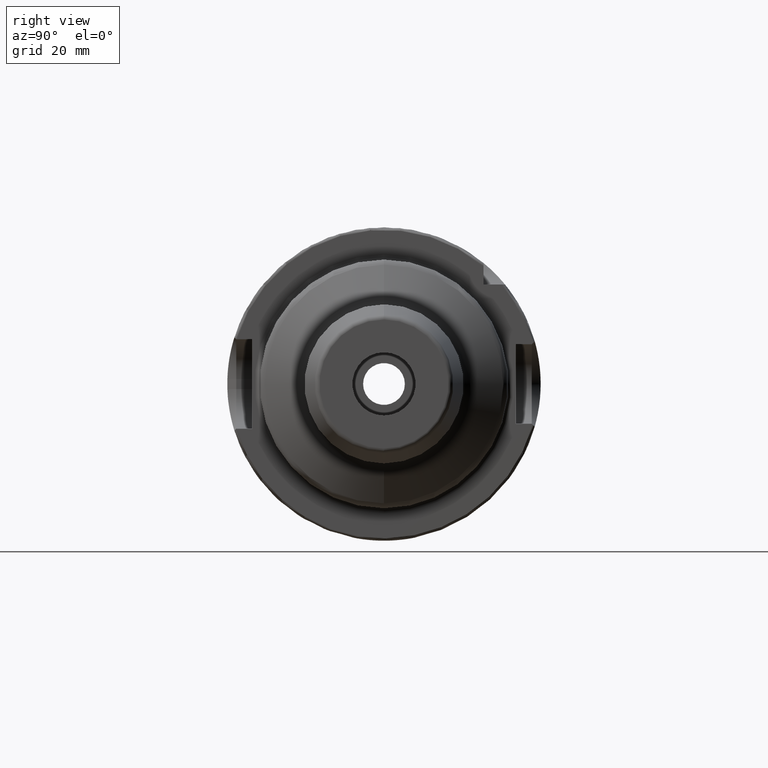
[diagram: clean part render]
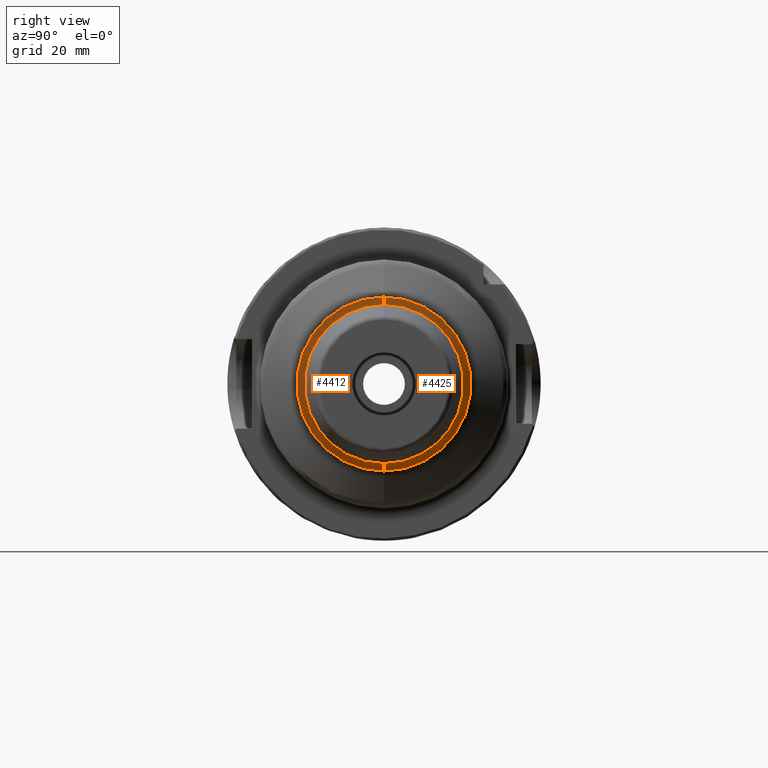
[diagram: same view with one multi-face feature highlighted, each face labeled with its STEP entity id]
A machine part, right view. The highlighted faces form ONE feature: a constant-radius fillet chain: 2 tangent blend faces with common blend radius 3 mm. The faces share edges in the B-rep.
Their STEP definitions:
[1] entity #4412 (Torus):
#887=CARTESIAN_POINT('',(4.673205080757E1,0.E0,-1.9E1));
#888=DIRECTION('',(0.E0,-1.E0,0.E0));
#889=DIRECTION('',(0.E0,0.E0,1.E0));
#890=AXIS2_PLACEMENT_3D('',#887,#888,#889);
#892=CARTESIAN_POINT('',(4.673205080757E1,0.E0,1.9E1));
#893=DIRECTION('',(0.E0,1.E0,0.E0));
#894=DIRECTION('',(0.E0,0.E0,-1.E0));
#895=AXIS2_PLACEMENT_3D('',#892,#893,#894);
#897=CARTESIAN_POINT('',(4.673205080757E1,0.E0,0.E0));
#898=DIRECTION('',(-1.E0,0.E0,0.E0));
#899=DIRECTION('',(0.E0,0.E0,-1.E0));
#900=AXIS2_PLACEMENT_3D('',#897,#898,#899);
#920=CARTESIAN_POINT('',(4.413397459621E1,0.E0,0.E0));
#921=DIRECTION('',(-1.E0,0.E0,0.E0));
#922=DIRECTION('',(0.E0,0.E0,-1.E0));
#923=AXIS2_PLACEMENT_3D('',#920,#921,#922);
#3210=CARTESIAN_POINT('',(4.673205080757E1,0.E0,-1.6E1));
#3211=VERTEX_POINT('',#3210);
#3212=CARTESIAN_POINT('',(4.413397459621E1,0.E0,-1.75E1));
#3213=VERTEX_POINT('',#3212);
#3270=CARTESIAN_POINT('',(4.673205080757E1,0.E0,1.6E1));
#3271=VERTEX_POINT('',#3270);
#3272=CARTESIAN_POINT('',(4.413397459621E1,0.E0,1.75E1));
#3273=VERTEX_POINT('',#3272);
#4398=CARTESIAN_POINT('',(4.673205080757E1,0.E0,0.E0));
#4399=DIRECTION('',(1.E0,0.E0,0.E0));
#4400=DIRECTION('',(0.E0,0.E0,1.E0));
#4401=AXIS2_PLACEMENT_3D('',#4398,#4399,#4400);
#4402=TOROIDAL_SURFACE('',#4401,1.9E1,3.E0);
#4404=ORIENTED_EDGE('',*,*,#4403,.T.);
#4406=ORIENTED_EDGE('',*,*,#4405,.T.);
#4408=ORIENTED_EDGE('',*,*,#4407,.F.);
#4409=ORIENTED_EDGE('',*,*,#4391,.F.);
#4410=EDGE_LOOP('',(#4404,#4406,#4408,#4409));
#4411=FACE_OUTER_BOUND('',#4410,.F.);
#4412=ADVANCED_FACE('',(#4411),#4402,.F.);
#891=CIRCLE('',#890,3.E0);
#896=CIRCLE('',#895,3.E0);
#901=CIRCLE('',#900,1.6E1);
#924=CIRCLE('',#923,1.75E1);
#4391=EDGE_CURVE('',#3211,#3271,#901,.T.);
#4403=EDGE_CURVE('',#3211,#3213,#891,.T.);
#4405=EDGE_CURVE('',#3213,#3273,#924,.T.);
#4407=EDGE_CURVE('',#3271,#3273,#896,.T.);
[2] entity #4425 (Torus):
#887=CARTESIAN_POINT('',(4.673205080757E1,0.E0,-1.9E1));
#888=DIRECTION('',(0.E0,-1.E0,0.E0));
#889=DIRECTION('',(0.E0,0.E0,1.E0));
#890=AXIS2_PLACEMENT_3D('',#887,#888,#889);
#892=CARTESIAN_POINT('',(4.673205080757E1,0.E0,1.9E1));
#893=DIRECTION('',(0.E0,1.E0,0.E0));
#894=DIRECTION('',(0.E0,0.E0,-1.E0));
#895=AXIS2_PLACEMENT_3D('',#892,#893,#894);
#902=CARTESIAN_POINT('',(4.673205080757E1,0.E0,0.E0));
#903=DIRECTION('',(1.E0,0.E0,0.E0));
#904=DIRECTION('',(0.E0,0.E0,-1.E0));
#905=AXIS2_PLACEMENT_3D('',#902,#903,#904);
#907=CARTESIAN_POINT('',(4.413397459621E1,0.E0,0.E0));
#908=DIRECTION('',(1.E0,0.E0,0.E0));
#909=DIRECTION('',(0.E0,0.E0,-1.E0));
#910=AXIS2_PLACEMENT_3D('',#907,#908,#909);
#3210=CARTESIAN_POINT('',(4.673205080757E1,0.E0,-1.6E1));
#3211=VERTEX_POINT('',#3210);
#3212=CARTESIAN_POINT('',(4.413397459621E1,0.E0,-1.75E1));
#3213=VERTEX_POINT('',#3212);
#3270=CARTESIAN_POINT('',(4.673205080757E1,0.E0,1.6E1));
#3271=VERTEX_POINT('',#3270);
#3272=CARTESIAN_POINT('',(4.413397459621E1,0.E0,1.75E1));
#3273=VERTEX_POINT('',#3272);
#4413=CARTESIAN_POINT('',(4.673205080757E1,0.E0,0.E0));
#4414=DIRECTION('',(1.E0,0.E0,0.E0));
#4415=DIRECTION('',(0.E0,0.E0,1.E0));
#4416=AXIS2_PLACEMENT_3D('',#4413,#4414,#4415);
#4417=TOROIDAL_SURFACE('',#4416,1.9E1,3.E0);
#4418=ORIENTED_EDGE('',*,*,#4403,.F.);
#4419=ORIENTED_EDGE('',*,*,#4380,.T.);
#4420=ORIENTED_EDGE('',*,*,#4407,.T.);
#4422=ORIENTED_EDGE('',*,*,#4421,.F.);
#4423=EDGE_LOOP('',(#4418,#4419,#4420,#4422));
#4424=FACE_OUTER_BOUND('',#4423,.F.);
#4425=ADVANCED_FACE('',(#4424),#4417,.F.);
#891=CIRCLE('',#890,3.E0);
#896=CIRCLE('',#895,3.E0);
#906=CIRCLE('',#905,1.6E1);
#911=CIRCLE('',#910,1.75E1);
#4380=EDGE_CURVE('',#3211,#3271,#906,.T.);
#4403=EDGE_CURVE('',#3211,#3213,#891,.T.);
#4407=EDGE_CURVE('',#3271,#3273,#896,.T.);
#4421=EDGE_CURVE('',#3213,#3273,#911,.T.);